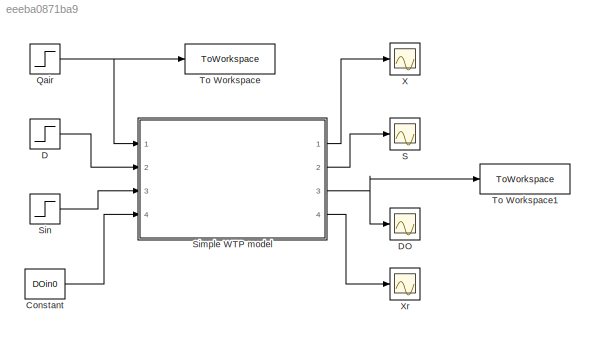
MODEL slx_eeeba0871ba9
KIND model
CONFIG AbsTol = auto
CONFIG EnableMultiTasking = off
CONFIG FixedStep = 1e-2
CONFIG MaxStep = auto
CONFIG MinStep = auto
CONFIG RelTol = 1e-3
CONFIG SampleTimeConstraint = Unconstrained
CONFIG Solver = FixedStepAuto
CONFIG SolverName = FixedStepAuto
CONFIG StartTime = 0.0
CONFIG StopTime = 200
BLOCK [Constant] Constant
  Value = DOin0
BLOCK [Step] D
  After = D0
  Before = D0
  SampleTime = 0
BLOCK [Scope] DO
  Floating = off
  NumInputPorts = 1
  Ports = [1]
  ScopeSpecificationString = Simulink.scopes.TimeScopeBlockCfg('CurrentConfiguration', extmgr.ConfigurationSet(extmgr.Configuration('Core','General UI',true),extmgr.Configuration('Core','Source UI',true),extmgr.Configuration('Sources','WiredSimulink',true,'DataLoggingVariableName','ScopeData2'),extmgr.Configuration('Visuals','Time Domain',true,'SerializedDisplays',{struct('MinYLimReal','4.92193','MaxYLimReal','6.38671','YLabe...<+1423ch>
BLOCK [Step] Qair
  After = Qair0*1.4
  Before = Qair0
  SampleTime = 0
  Time = 100
BLOCK [Scope] S
  Floating = off
  NumInputPorts = 1
  Ports = [1]
  ScopeSpecificationString = Simulink.scopes.TimeScopeBlockCfg('CurrentConfiguration', extmgr.ConfigurationSet(extmgr.Configuration('Core','General UI',true),extmgr.Configuration('Core','Source UI',true),extmgr.Configuration('Sources','WiredSimulink',true,'DataLoggingVariableName','ScopeData1'),extmgr.Configuration('Visuals','Time Domain',true,'SerializedDisplays',{struct('MinYLimReal','9.55826','MaxYLimReal','10.37587','YLab...<+1453ch>
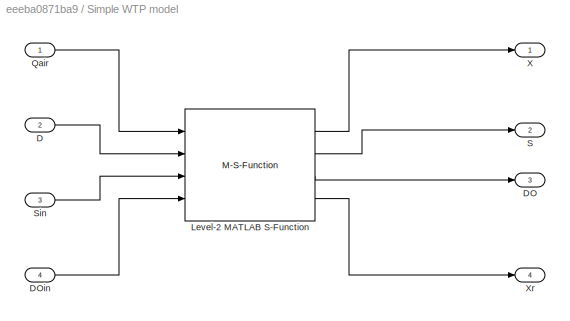
BLOCK [SubSystem] Simple WTP model
  Ports = [4, 4]
  RequestExecContextInheritance = off
BLOCK [Inport] Simple WTP model/D
  Port = 2
BLOCK [Outport] Simple WTP model/DO
  Port = 3
BLOCK [Inport] Simple WTP model/DOin
  Port = 4
BLOCK [M-S-Function] Simple WTP model/Level-2 MATLAB S-Function
  FunctionName = sfun_WTP
  Parameters = [Y;\nr;\nbeta;\nKDO;alpha;\numax; Ks; K0;\nDOmax], [X0;S0;DO0;Xr0]
  Ports = [4, 4]
BLOCK [Inport] Simple WTP model/Qair
BLOCK [Outport] Simple WTP model/S
  Port = 2
BLOCK [Inport] Simple WTP model/Sin
  Port = 3
BLOCK [Outport] Simple WTP model/X
BLOCK [Outport] Simple WTP model/Xr
  Port = 4
BLOCK [Step] Sin
  After = Sin0
  Before = Sin0
  SampleTime = 0
BLOCK [ToWorkspace] To Workspace
  FixptAsFi = on
  MaxDataPoints = inf
  Ports = [1]
  SampleTime = 1e-2
  SaveFormat = Timeseries
  VariableName = Qair
BLOCK [ToWorkspace] To Workspace1
  FixptAsFi = on
  MaxDataPoints = inf
  Ports = [1]
  SampleTime = 1e-2
  SaveFormat = Timeseries
  VariableName = DO
BLOCK [Scope] X
  Floating = off
  NumInputPorts = 1
  Ports = [1]
  ScopeSpecificationString = Simulink.scopes.TimeScopeBlockCfg('CurrentConfiguration', extmgr.ConfigurationSet(extmgr.Configuration('Core','General UI',true),extmgr.Configuration('Core','Source UI',true),extmgr.Configuration('Sources','WiredSimulink',true),extmgr.Configuration('Visuals','Time Domain',true,'SerializedDisplays',{struct('MinYLimReal','298.10892','MaxYLimReal','299.37264','YLabelReal','','MinYLimMag','298.10892',...<+1400ch>
BLOCK [Scope] Xr
  Floating = off
  NumInputPorts = 1
  Ports = [1]
  ScopeSpecificationString = Simulink.scopes.TimeScopeBlockCfg('CurrentConfiguration', extmgr.ConfigurationSet(extmgr.Configuration('Core','General UI',true),extmgr.Configuration('Core','Source UI',true),extmgr.Configuration('Sources','WiredSimulink',true,'DataLoggingVariableName','ScopeData3'),extmgr.Configuration('Visuals','Time Domain',true,'SerializedDisplays',{struct('MinYLimReal','596.25506','MaxYLimReal','598.41047','Y...<+1439ch>
LINE Constant:1 -> Simple WTP model:4
LINE D:1 -> Simple WTP model:2
NET Qair:1 -> Simple WTP model:1, To Workspace:1
LINE Simple WTP model/D:1 -> Simple WTP model/Level-2 MATLAB S-Function:2
LINE Simple WTP model/DOin:1 -> Simple WTP model/Level-2 MATLAB S-Function:4
LINE Simple WTP model/Level-2 MATLAB S-Function:1 -> Simple WTP model/X:1
LINE Simple WTP model/Level-2 MATLAB S-Function:2 -> Simple WTP model/S:1
LINE Simple WTP model/Level-2 MATLAB S-Function:3 -> Simple WTP model/DO:1
LINE Simple WTP model/Level-2 MATLAB S-Function:4 -> Simple WTP model/Xr:1
LINE Simple WTP model/Qair:1 -> Simple WTP model/Level-2 MATLAB S-Function:1
LINE Simple WTP model/Sin:1 -> Simple WTP model/Level-2 MATLAB S-Function:3
LINE Simple WTP model:1 -> X:1
LINE Simple WTP model:2 -> S:1
NET Simple WTP model:3 -> DO:1, To Workspace1:1
LINE Simple WTP model:4 -> Xr:1
LINE Sin:1 -> Simple WTP model:3
note: NET lines group one-source signal fan-out (src -> all destinations, sorted); 1:1 wires keep LINE
